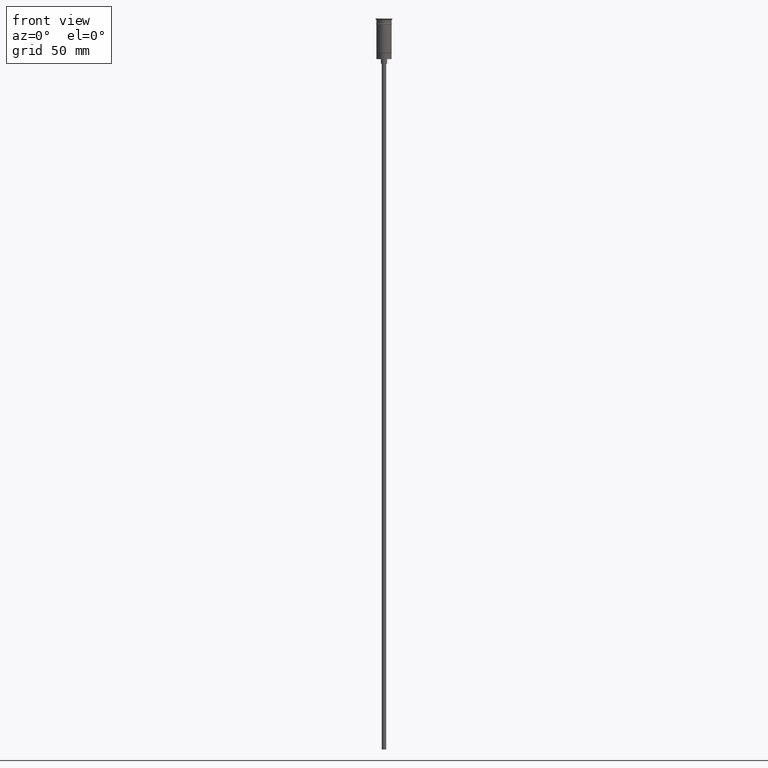
[diagram: clean part render]
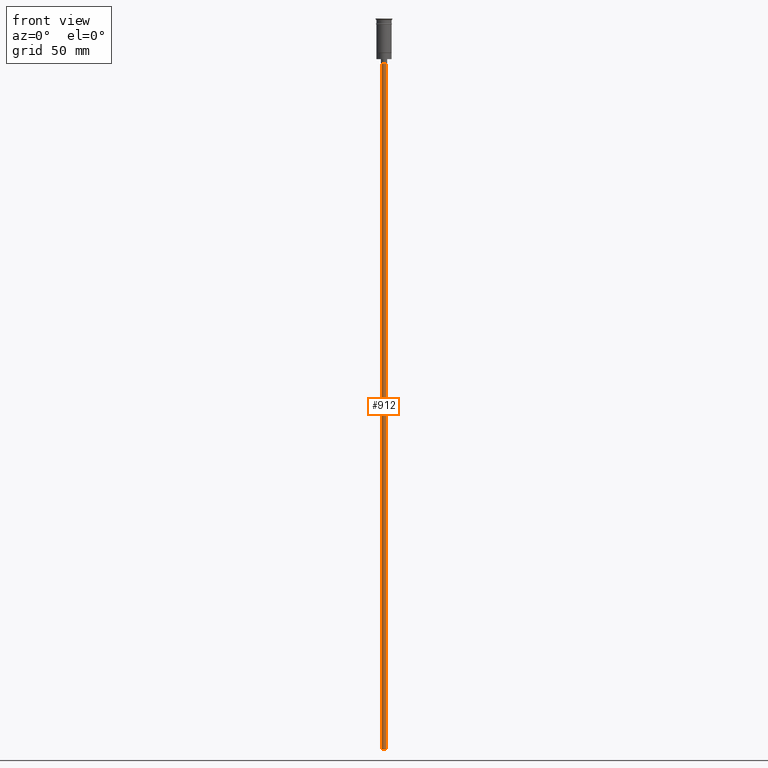
[diagram: same view with one face highlighted and labeled with its STEP entity id]
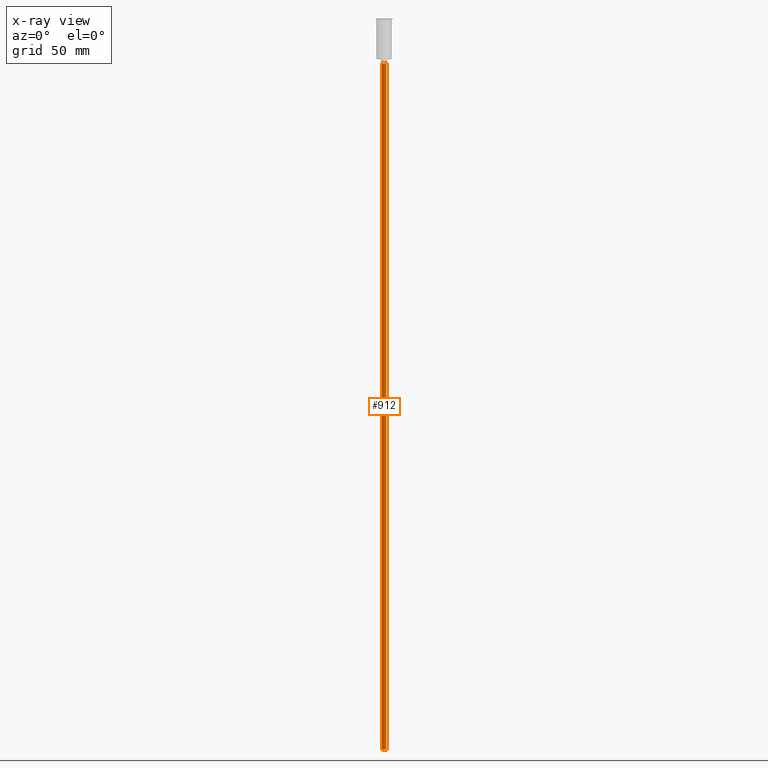
[diagram: x-ray of the same camera — body ghosted, the highlighted face saturated]
A machine part, front view. The second image highlights one B-rep face of the part: STEP entity #912.
The next image is the same camera in x-ray: the body ghosted, the highlighted face saturated — about 0% of this face is hidden behind the body in this view.
In plain terms, the highlighted cylindrical surface (edge-blend (fillet) strip) has radius 1.5 mm, axis along (-0, -0, 1).
Its self-contained STEP definition (entity closure, byte-faithful):
#97 = VERTEX_POINT ( 'NONE', #220 ) ;
#115 = VECTOR ( 'NONE', #1433, 1000.000000000000000 ) ;
#220 = CARTESIAN_POINT ( 'NONE',  ( -1.500000000000000222, 1.836970198721030181E-16, -476.5000000000000568 ) ) ;
#365 = DIRECTION ( 'NONE',  ( 1.000000000000000000, 0.000000000000000000, 0.000000000000000000 ) ) ;
#385 = CARTESIAN_POINT ( 'NONE',  ( 0.000000000000000000, 0.000000000000000000, -29.50000000000000000 ) ) ;
#386 = AXIS2_PLACEMENT_3D ( 'NONE', #716, #740, #365 ) ;
#447 = LINE ( 'NONE', #919, #115 ) ;
#558 = ORIENTED_EDGE ( 'NONE', *, *, #948, .T. ) ;
#594 = CIRCLE ( 'NONE', #1498, 1.500000000000000222 ) ;
#624 = CARTESIAN_POINT ( 'NONE',  ( 0.000000000000000000, 0.000000000000000000, -476.5000000000000568 ) ) ;
#646 = EDGE_CURVE ( 'NONE', #795, #1342, #447, .T. ) ;
#709 = DIRECTION ( 'NONE',  ( 0.000000000000000000, 0.000000000000000000, -1.000000000000000000 ) ) ;
#716 = CARTESIAN_POINT ( 'NONE',  ( 0.000000000000000000, 0.000000000000000000, -476.5000000000000568 ) ) ;
#732 = DIRECTION ( 'NONE',  ( -1.000000000000000000, 0.000000000000000000, 0.000000000000000000 ) ) ;
#737 = EDGE_CURVE ( 'NONE', #97, #1393, #999, .T. ) ;
#740 = DIRECTION ( 'NONE',  ( -0.000000000000000000, -0.000000000000000000, 1.000000000000000000 ) ) ;
#745 = DIRECTION ( 'NONE',  ( -0.000000000000000000, -0.000000000000000000, 1.000000000000000000 ) ) ;
#795 = VERTEX_POINT ( 'NONE', #906 ) ;
#828 = AXIS2_PLACEMENT_3D ( 'NONE', #624, #709, #732 ) ;
#905 = EDGE_CURVE ( 'NONE', #795, #97, #1066, .T. ) ;
#906 = CARTESIAN_POINT ( 'NONE',  ( 1.500000000000000222, 0.000000000000000000, -476.5000000000000568 ) ) ;
#912 = ADVANCED_FACE ( 'NONE', ( #1360 ), #1230, .T. ) ;
#919 = CARTESIAN_POINT ( 'NONE',  ( 1.500000000000000222, 0.000000000000000000, -476.5000000000000568 ) ) ;
#948 = EDGE_CURVE ( 'NONE', #1342, #1393, #594, .T. ) ;
#999 = LINE ( 'NONE', #1131, #1364 ) ;
#1066 = CIRCLE ( 'NONE', #828, 1.500000000000000222 ) ;
#1093 = CARTESIAN_POINT ( 'NONE',  ( -1.500000000000000222, 1.836970198721030181E-16, -29.50000000000000000 ) ) ;
#1121 = ORIENTED_EDGE ( 'NONE', *, *, #737, .F. ) ;
#1131 = CARTESIAN_POINT ( 'NONE',  ( -1.500000000000000222, 1.836970198721030181E-16, -476.5000000000000568 ) ) ;
#1178 = CARTESIAN_POINT ( 'NONE',  ( 1.500000000000000222, 0.000000000000000000, -29.50000000000000000 ) ) ;
#1230 = CYLINDRICAL_SURFACE ( 'NONE', #386, 1.500000000000000222 ) ;
#1241 = DIRECTION ( 'NONE',  ( -1.000000000000000000, 0.000000000000000000, 0.000000000000000000 ) ) ;
#1261 = EDGE_LOOP ( 'NONE', ( #1121, #1557, #1353, #558 ) ) ;
#1342 = VERTEX_POINT ( 'NONE', #1178 ) ;
#1353 = ORIENTED_EDGE ( 'NONE', *, *, #646, .T. ) ;
#1360 = FACE_OUTER_BOUND ( 'NONE', #1261, .T. ) ;
#1364 = VECTOR ( 'NONE', #745, 1000.000000000000000 ) ;
#1366 = DIRECTION ( 'NONE',  ( 0.000000000000000000, 0.000000000000000000, -1.000000000000000000 ) ) ;
#1393 = VERTEX_POINT ( 'NONE', #1093 ) ;
#1433 = DIRECTION ( 'NONE',  ( -0.000000000000000000, -0.000000000000000000, 1.000000000000000000 ) ) ;
#1498 = AXIS2_PLACEMENT_3D ( 'NONE', #385, #1366, #1241 ) ;
#1557 = ORIENTED_EDGE ( 'NONE', *, *, #905, .F. ) ;